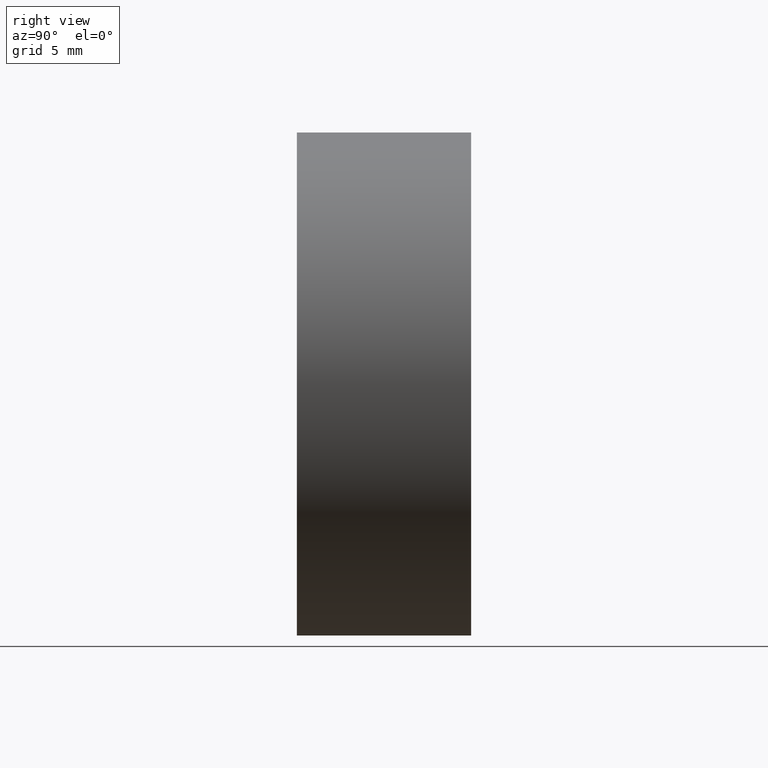
[diagram: clean part render]
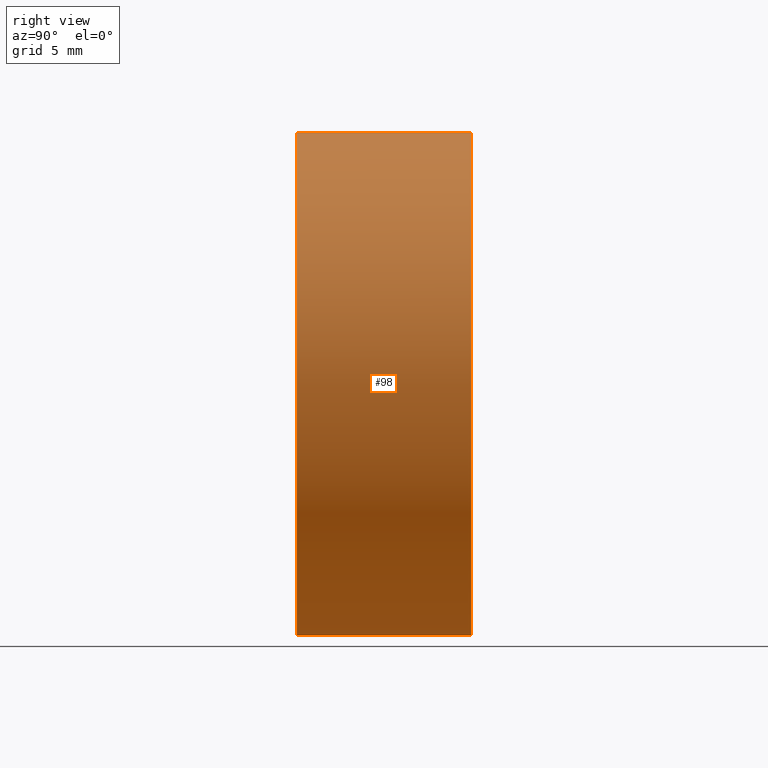
[diagram: same view with one face highlighted and labeled with its STEP entity id]
A machine part, right view. The second image highlights one B-rep face of the part: STEP entity #98.
In plain terms, the highlighted cylindrical surface (partial cylindrical patch) has radius 15.875 mm, axis along (-0, 1, -0).
Its self-contained STEP definition (entity closure, byte-faithful):
#23 = AXIS2_PLACEMENT_3D ( 'NONE', #415, #266, #157 ) ;
#33 = EDGE_LOOP ( 'NONE', ( #300, #280, #84, #311 ) ) ;
#34 = CYLINDRICAL_SURFACE ( 'NONE', #110, 15.87500000000000400 ) ;
#47 = CARTESIAN_POINT ( 'NONE',  ( 0.0000000000000000000, 0.0000000000000000000, 15.87500000000000400 ) ) ;
#49 = EDGE_CURVE ( 'NONE', #304, #210, #92, .T. ) ;
#55 = CARTESIAN_POINT ( 'NONE',  ( 1.944126793646423600E-015, 60.02082041425541100, -15.87500000000000400 ) ) ;
#84 = ORIENTED_EDGE ( 'NONE', *, *, #307, .F. ) ;
#91 = FACE_OUTER_BOUND ( 'NONE', #33, .T. ) ;
#92 = LINE ( 'NONE', #55, #313 ) ;
#98 = ADVANCED_FACE ( 'NONE', ( #91 ), #34, .T. ) ;
#110 = AXIS2_PLACEMENT_3D ( 'NONE', #306, #334, #412 ) ;
#113 = DIRECTION ( 'NONE',  ( -0.0000000000000000000, 1.000000000000000000, -0.0000000000000000000 ) ) ;
#114 = CARTESIAN_POINT ( 'NONE',  ( 0.0000000000000000000, 60.02082041425541100, 15.87500000000000400 ) ) ;
#143 = CARTESIAN_POINT ( 'NONE',  ( 0.0000000000000000000, 10.99999999999999600, 15.87500000000000400 ) ) ;
#153 = CIRCLE ( 'NONE', #293, 15.87500000000000400 ) ;
#157 = DIRECTION ( 'NONE',  ( 0.0000000000000000000, 0.0000000000000000000, 1.000000000000000000 ) ) ;
#183 = CARTESIAN_POINT ( 'NONE',  ( 0.0000000000000000000, 0.0000000000000000000, 0.0000000000000000000 ) ) ;
#194 = VECTOR ( 'NONE', #113, 1000.000000000000000 ) ;
#210 = VERTEX_POINT ( 'NONE', #308 ) ;
#229 = EDGE_CURVE ( 'NONE', #261, #338, #420, .T. ) ;
#233 = CARTESIAN_POINT ( 'NONE',  ( 1.944126793646423600E-015, 0.0000000000000000000, -15.87500000000000400 ) ) ;
#240 = DIRECTION ( 'NONE',  ( -0.0000000000000000000, 1.000000000000000000, -0.0000000000000000000 ) ) ;
#261 = VERTEX_POINT ( 'NONE', #47 ) ;
#266 = DIRECTION ( 'NONE',  ( -0.0000000000000000000, 1.000000000000000000, -0.0000000000000000000 ) ) ;
#273 = CIRCLE ( 'NONE', #23, 15.87500000000000400 ) ;
#280 = ORIENTED_EDGE ( 'NONE', *, *, #49, .T. ) ;
#289 = DIRECTION ( 'NONE',  ( 0.0000000000000000000, 0.0000000000000000000, 1.000000000000000000 ) ) ;
#293 = AXIS2_PLACEMENT_3D ( 'NONE', #183, #240, #289 ) ;
#300 = ORIENTED_EDGE ( 'NONE', *, *, #429, .T. ) ;
#304 = VERTEX_POINT ( 'NONE', #233 ) ;
#306 = CARTESIAN_POINT ( 'NONE',  ( 0.0000000000000000000, 60.02082041425541100, 0.0000000000000000000 ) ) ;
#307 = EDGE_CURVE ( 'NONE', #338, #210, #273, .T. ) ;
#308 = CARTESIAN_POINT ( 'NONE',  ( 1.944126793646423600E-015, 10.99999999999999600, -15.87500000000000400 ) ) ;
#311 = ORIENTED_EDGE ( 'NONE', *, *, #229, .F. ) ;
#313 = VECTOR ( 'NONE', #411, 1000.000000000000000 ) ;
#334 = DIRECTION ( 'NONE',  ( -0.0000000000000000000, 1.000000000000000000, -0.0000000000000000000 ) ) ;
#338 = VERTEX_POINT ( 'NONE', #143 ) ;
#411 = DIRECTION ( 'NONE',  ( -0.0000000000000000000, 1.000000000000000000, -0.0000000000000000000 ) ) ;
#412 = DIRECTION ( 'NONE',  ( 0.0000000000000000000, 0.0000000000000000000, 1.000000000000000000 ) ) ;
#415 = CARTESIAN_POINT ( 'NONE',  ( 0.0000000000000000000, 10.99999999999999600, 0.0000000000000000000 ) ) ;
#420 = LINE ( 'NONE', #114, #194 ) ;
#429 = EDGE_CURVE ( 'NONE', #261, #304, #153, .T. ) ;